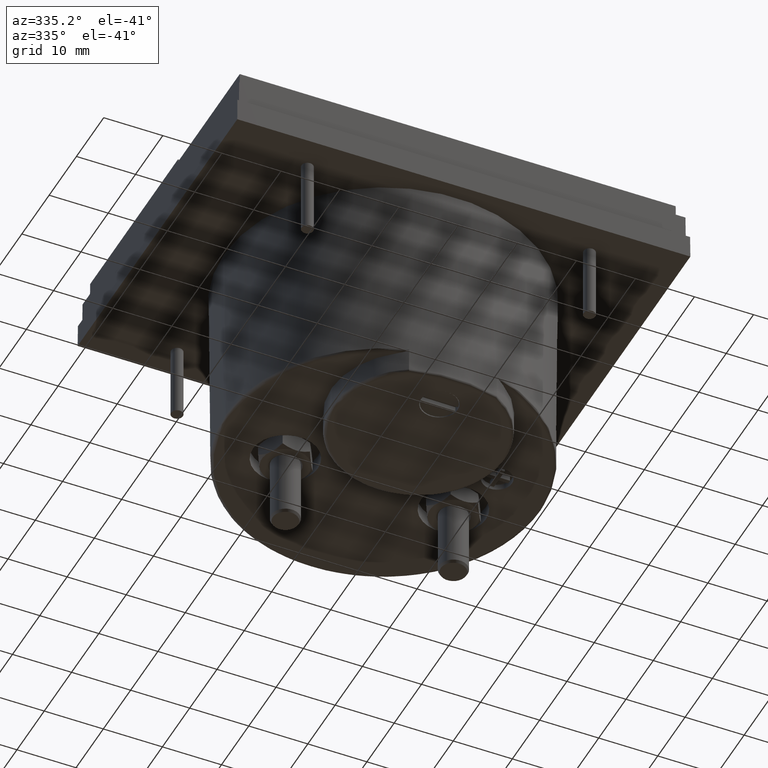
[diagram: clean part render]
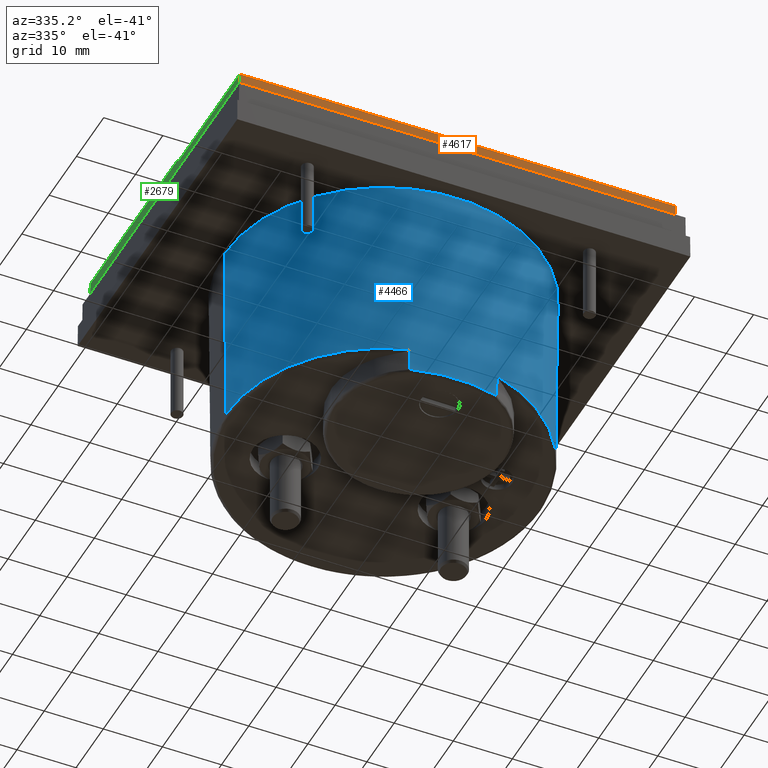
[diagram: same view with three faces highlighted in distinct colors, each labeled with its STEP entity id]
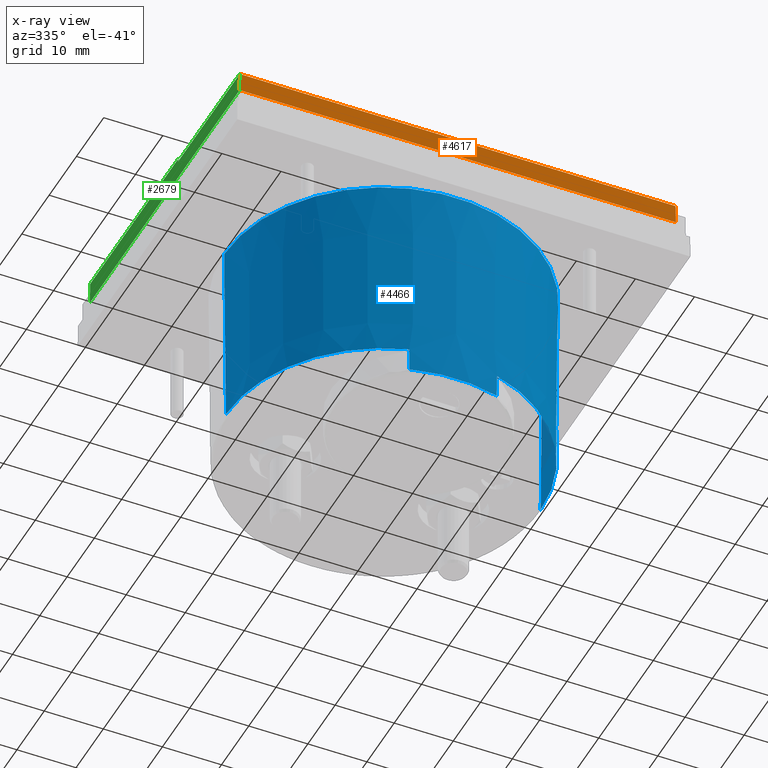
[diagram: x-ray of the same camera — body ghosted, the three highlighted faces saturated]
A machine part, auxiliary view with three faces highlighted in distinct colors.
The next image is the same camera in x-ray (body ghosted, the three faces saturated) — at least one of them is partly hidden behind the body in this view.
Their STEP definitions:

[orange] entity #4617 — the highlighted planar face has unit normal (0, -1, 0.0087).
#189 = EDGE_LOOP ( 'NONE', ( #2197, #3608, #4002, #1951 ) ) ;
#244 = CARTESIAN_POINT ( 'NONE',  ( -1.452741772456940694, -0.2578598826931585708, 0.1795275590551188849 ) ) ;
#268 = DIRECTION ( 'NONE',  ( 0.000000000000000000, -0.008726535498373934677, -0.9999619230641711987 ) ) ;
#837 = EDGE_CURVE ( 'NONE', #1532, #2770, #1219, .T. ) ;
#853 = CARTESIAN_POINT ( 'NONE',  ( -1.453879013889515459, -0.2589971241257338908, 0.04921259842519704747 ) ) ;
#1110 = AXIS2_PLACEMENT_3D ( 'NONE', #1119, #2173, #268 ) ;
#1119 = CARTESIAN_POINT ( 'NONE',  ( 1.509842519685039575, -0.2618110236220452802, -0.2732283464566921394 ) ) ;
#1219 = LINE ( 'NONE', #244, #1470 ) ;
#1303 = VECTOR ( 'NONE', #3743, 39.37007874015747433 ) ;
#1313 = DIRECTION ( 'NONE',  ( -1.000000000000000000, -4.800598825743087264E-17, 4.189419126873180871E-19 ) ) ;
#1470 = VECTOR ( 'NONE', #3063, 39.37007874015748143 ) ;
#1532 = VERTEX_POINT ( 'NONE', #4524 ) ;
#1932 = CARTESIAN_POINT ( 'NONE',  ( 1.453879013889515903, -0.2589971241257337242, 0.04921259842519760952 ) ) ;
#1951 = ORIENTED_EDGE ( 'NONE', *, *, #837, .T. ) ;
#2081 = VERTEX_POINT ( 'NONE', #3515 ) ;
#2165 = VECTOR ( 'NONE', #1313, 39.37007874015748143 ) ;
#2173 = DIRECTION ( 'NONE',  ( 4.800781624796942407E-17, -0.9999619230641713097, 0.008726535498373936411 ) ) ;
#2197 = ORIENTED_EDGE ( 'NONE', *, *, #2960, .T. ) ;
#2357 = CARTESIAN_POINT ( 'NONE',  ( -1.490157480314960647, -0.2589971241257338908, 0.04921259842519685318 ) ) ;
#2657 = LINE ( 'NONE', #1932, #1303 ) ;
#2770 = VERTEX_POINT ( 'NONE', #853 ) ;
#2792 = EDGE_CURVE ( 'NONE', #2081, #1532, #5933, .T. ) ;
#2809 = LINE ( 'NONE', #2357, #5846 ) ;
#2960 = EDGE_CURVE ( 'NONE', #2770, #3881, #2809, .T. ) ;
#3063 = DIRECTION ( 'NONE',  ( -0.008726203243943632740, -0.008726203243944418569, -0.9999238504775703751 ) ) ;
#3205 = CARTESIAN_POINT ( 'NONE',  ( 1.509842519685039575, -0.2578598826931584043, 0.1795275590551188849 ) ) ;
#3272 = EDGE_CURVE ( 'NONE', #3881, #2081, #2657, .T. ) ;
#3515 = CARTESIAN_POINT ( 'NONE',  ( 1.452741772456940694, -0.2578598826931582932, 0.1795275590551188849 ) ) ;
#3608 = ORIENTED_EDGE ( 'NONE', *, *, #3272, .T. ) ;
#3743 = DIRECTION ( 'NONE',  ( -0.008726203243941538928, 0.008726203243944420304, 0.9999238504775705971 ) ) ;
#3881 = VERTEX_POINT ( 'NONE', #4342 ) ;
#4002 = ORIENTED_EDGE ( 'NONE', *, *, #2792, .T. ) ;
#4213 = DIRECTION ( 'NONE',  ( 1.000000000000000000, -0.000000000000000000, 0.000000000000000000 ) ) ;
#4342 = CARTESIAN_POINT ( 'NONE',  ( 1.453879013889515459, -0.2589971241257336132, 0.04921259842519742217 ) ) ;
#4476 = FACE_OUTER_BOUND ( 'NONE', #189, .T. ) ;
#4524 = CARTESIAN_POINT ( 'NONE',  ( -1.452741772456940472, -0.2578598826931583488, 0.1795275590551188849 ) ) ;
#4617 = ADVANCED_FACE ( 'NONE', ( #4476 ), #5384, .T. ) ;
#5384 = PLANE ( 'NONE',  #1110 ) ;
#5846 = VECTOR ( 'NONE', #4213, 39.37007874015748143 ) ;
#5933 = LINE ( 'NONE', #3205, #2165 ) ;

[blue] entity #4466 — the highlighted conical surface has half-angle 0.5 deg.
#160 = CARTESIAN_POINT ( 'NONE',  ( 0.2917813320034607916, -0.1900923783822273117, -1.710408002665992244 ) ) ;
#259 = CARTESIAN_POINT ( 'NONE',  ( 0.2923328206292112874, -0.1913633574854087249, -1.552927687706716853 ) ) ;
#264 = EDGE_CURVE ( 'NONE', #541, #5666, #3009, .T. ) ;
#541 = VERTEX_POINT ( 'NONE', #2760 ) ;
#598 = FACE_OUTER_BOUND ( 'NONE', #1597, .T. ) ;
#636 = VECTOR ( 'NONE', #3431, 39.37007874015748854 ) ;
#760 = CARTESIAN_POINT ( 'NONE',  ( 8.195543980992795572E-16, 0.8159055118110236648, -1.552927687706768367 ) ) ;
#893 = VECTOR ( 'NONE', #2553, 39.37007874015748854 ) ;
#1021 = VERTEX_POINT ( 'NONE', #5505 ) ;
#1327 = CARTESIAN_POINT ( 'NONE',  ( -0.2923328206291994635, -0.1913633574854115560, -1.552927687706716853 ) ) ;
#1467 = EDGE_CURVE ( 'NONE', #1021, #3825, #2012, .T. ) ;
#1597 = EDGE_LOOP ( 'NONE', ( #2030, #4668, #5220, #5631, #2806, #1880, #3419, #4877 ) ) ;
#1629 = CARTESIAN_POINT ( 'NONE',  ( 1.060000000000000719, 0.8159055118110236648, -0.2732283464567021314 ) ) ;
#1793 = CARTESIAN_POINT ( 'NONE',  ( 0.2923328206292112874, -0.1913633574854087249, -1.552927687706716853 ) ) ;
#1875 = EDGE_CURVE ( 'NONE', #3865, #3644, #3217, .T. ) ;
#1880 = ORIENTED_EDGE ( 'NONE', *, *, #1875, .T. ) ;
#1961 = DIRECTION ( 'NONE',  ( -0.000000000000000000, 0.000000000000000000, 1.000000000000000000 ) ) ;
#2012 = LINE ( 'NONE', #3852, #893 ) ;
#2030 = ORIENTED_EDGE ( 'NONE', *, *, #1467, .F. ) ;
#2035 = EDGE_CURVE ( 'NONE', #2179, #3825, #5059, .T. ) ;
#2179 = VERTEX_POINT ( 'NONE', #3332 ) ;
#2438 = DIRECTION ( 'NONE',  ( 1.000000000000000000, 0.000000000000000000, 0.000000000000000000 ) ) ;
#2473 = CARTESIAN_POINT ( 'NONE',  ( 8.195543980992789655E-16, 0.8159055118110236648, -0.2732283464567021314 ) ) ;
#2553 = DIRECTION ( 'NONE',  ( -0.008726535488402603624, 1.068692375351803275E-18, 0.9999619230642582401 ) ) ;
#2638 = CARTESIAN_POINT ( 'NONE',  ( 8.195543980992789655E-16, 0.8159055118110236648, -0.2732283464567021314 ) ) ;
#2690 = VERTEX_POINT ( 'NONE', #5816 ) ;
#2749 = AXIS2_PLACEMENT_3D ( 'NONE', #2473, #1961, #2438 ) ;
#2756 = CARTESIAN_POINT ( 'NONE',  ( 0.2917813320034607916, -0.1900923783822273117, -1.710408002665992244 ) ) ;
#2760 = CARTESIAN_POINT ( 'NONE',  ( -0.2917813345756032906, -0.1900923776361859163, -1.710408002667384686 ) ) ;
#2798 = EDGE_CURVE ( 'NONE', #5666, #3865, #2916, .T. ) ;
#2806 = ORIENTED_EDGE ( 'NONE', *, *, #2798, .T. ) ;
#2907 = DIRECTION ( 'NONE',  ( 0.000000000000000000, 0.000000000000000000, 1.000000000000000000 ) ) ;
#2916 = B_SPLINE_CURVE_WITH_KNOTS ( 'NONE', 3,
 ( #2756, #4608, #4545, #1793 ),
 .UNSPECIFIED., .F., .F.,
 ( 4, 4 ),
 ( 0.000000000000000000, 1.000000000000000000 ),
 .UNSPECIFIED. ) ;
#3009 = CIRCLE ( 'NONE', #4651, 1.047457923163013005 ) ;
#3154 = DIRECTION ( 'NONE',  ( 0.000000000000000000, -0.000000000000000000, -1.000000000000000000 ) ) ;
#3217 = CIRCLE ( 'NONE', #5146, 1.048832233049751261 ) ;
#3322 = DIRECTION ( 'NONE',  ( -1.000000000000000000, 0.000000000000000000, -7.553504680715287121E-15 ) ) ;
#3332 = CARTESIAN_POINT ( 'NONE',  ( 1.060000000000000719, 0.8159055118110236648, -0.2732283464567021314 ) ) ;
#3339 = DIRECTION ( 'NONE',  ( -1.000000000000000000, 0.000000000000000000, 2.868881629112489169E-15 ) ) ;
#3367 = CARTESIAN_POINT ( 'NONE',  ( 8.195543980992795572E-16, 0.8159055118110236648, -1.710408002667415772 ) ) ;
#3370 = CARTESIAN_POINT ( 'NONE',  ( -1.059999999999999165, 0.8159055118110237759, -0.2732283464567021314 ) ) ;
#3419 = ORIENTED_EDGE ( 'NONE', *, *, #5589, .T. ) ;
#3431 = DIRECTION ( 'NONE',  ( 0.008726535488402603624, 0.000000000000000000, 0.9999619230642582401 ) ) ;
#3644 = VERTEX_POINT ( 'NONE', #4107 ) ;
#3646 = EDGE_CURVE ( 'NONE', #2690, #541, #4071, .T. ) ;
#3708 = CONICAL_SURFACE ( 'NONE', #2749, 1.059999999999999831, 0.008726646249999938515 ) ;
#3716 = CIRCLE ( 'NONE', #4200, 1.048832233049751261 ) ;
#3768 = CARTESIAN_POINT ( 'NONE',  ( 8.195543980992795572E-16, 0.8159055118110236648, -1.552927687706768367 ) ) ;
#3825 = VERTEX_POINT ( 'NONE', #3370 ) ;
#3852 = CARTESIAN_POINT ( 'NONE',  ( -1.059999999999999165, 0.8159055118110237759, -0.2732283464567021314 ) ) ;
#3865 = VERTEX_POINT ( 'NONE', #259 ) ;
#3886 = LINE ( 'NONE', #1629, #636 ) ;
#3968 = DIRECTION ( 'NONE',  ( -1.000000000000000000, 0.000000000000000000, -7.553504680715287121E-15 ) ) ;
#4071 = B_SPLINE_CURVE_WITH_KNOTS ( 'NONE', 3,
 ( #1327, #4984, #5953, #4504 ),
 .UNSPECIFIED., .F., .F.,
 ( 4, 4 ),
 ( 0.000000000000000000, 1.000000000000000000 ),
 .UNSPECIFIED. ) ;
#4107 = CARTESIAN_POINT ( 'NONE',  ( 1.048832233049751927, 0.8159055118110236648, -1.552927687706768367 ) ) ;
#4194 = AXIS2_PLACEMENT_3D ( 'NONE', #2638, #3154, #4494 ) ;
#4200 = AXIS2_PLACEMENT_3D ( 'NONE', #3768, #5618, #3322 ) ;
#4466 = ADVANCED_FACE ( 'NONE', ( #598 ), #3708, .T. ) ;
#4494 = DIRECTION ( 'NONE',  ( 1.000000000000000000, 0.000000000000000000, 0.000000000000000000 ) ) ;
#4504 = CARTESIAN_POINT ( 'NONE',  ( -0.2917813345756032906, -0.1900923776361859163, -1.710408002667384686 ) ) ;
#4509 = EDGE_CURVE ( 'NONE', #1021, #2690, #3716, .T. ) ;
#4545 = CARTESIAN_POINT ( 'NONE',  ( 0.2921489196474710281, -0.1909397236215279181, -1.605421126027062328 ) ) ;
#4608 = CARTESIAN_POINT ( 'NONE',  ( 0.2919650909610897460, -0.1905160636664051943, -1.657914564347348074 ) ) ;
#4651 = AXIS2_PLACEMENT_3D ( 'NONE', #3367, #2907, #3339 ) ;
#4668 = ORIENTED_EDGE ( 'NONE', *, *, #4509, .T. ) ;
#4877 = ORIENTED_EDGE ( 'NONE', *, *, #2035, .T. ) ;
#4964 = DIRECTION ( 'NONE',  ( 0.000000000000000000, 0.000000000000000000, 1.000000000000000000 ) ) ;
#4984 = CARTESIAN_POINT ( 'NONE',  ( -0.2921489196474683081, -0.1909397236215286953, -1.605421126026988610 ) ) ;
#5059 = CIRCLE ( 'NONE', #4194, 1.059999999999999831 ) ;
#5146 = AXIS2_PLACEMENT_3D ( 'NONE', #760, #4964, #3968 ) ;
#5220 = ORIENTED_EDGE ( 'NONE', *, *, #3646, .T. ) ;
#5505 = CARTESIAN_POINT ( 'NONE',  ( -1.048832233049750373, 0.8159055118110237759, -1.552927687706768367 ) ) ;
#5589 = EDGE_CURVE ( 'NONE', #3644, #2179, #3886, .T. ) ;
#5618 = DIRECTION ( 'NONE',  ( 0.000000000000000000, 0.000000000000000000, 1.000000000000000000 ) ) ;
#5631 = ORIENTED_EDGE ( 'NONE', *, *, #264, .T. ) ;
#5666 = VERTEX_POINT ( 'NONE', #160 ) ;
#5816 = CARTESIAN_POINT ( 'NONE',  ( -0.2923328206291994635, -0.1913633574854115560, -1.552927687706716853 ) ) ;
#5953 = CARTESIAN_POINT ( 'NONE',  ( -0.2919650909610871370, -0.1905160636664066931, -1.657914564347200415 ) ) ;

[green] entity #2679 — the highlighted planar face has unit normal (-1, 0, 0.0087).
#94 = EDGE_CURVE ( 'NONE', #2671, #3731, #2470, .T. ) ;
#132 = LINE ( 'NONE', #1161, #1570 ) ;
#146 = LINE ( 'NONE', #3861, #236 ) ;
#171 = DIRECTION ( 'NONE',  ( 0.000000000000000000, 1.000000000000000000, -0.000000000000000000 ) ) ;
#215 = CARTESIAN_POINT ( 'NONE',  ( -1.456692913385826849, 0.6299212598425196763, -0.2732283464566929720 ) ) ;
#236 = VECTOR ( 'NONE', #1996, 39.37007874015748143 ) ;
#244 = CARTESIAN_POINT ( 'NONE',  ( -1.452741772456940694, -0.2578598826931585708, 0.1795275590551188849 ) ) ;
#304 = ORIENTED_EDGE ( 'NONE', *, *, #1433, .T. ) ;
#390 = ORIENTED_EDGE ( 'NONE', *, *, #4532, .T. ) ;
#424 = DIRECTION ( 'NONE',  ( -0.008726203243983899141, -0.008726203243942269247, -0.9999238504775702641 ) ) ;
#671 = PLANE ( 'NONE',  #1972 ) ;
#837 = EDGE_CURVE ( 'NONE', #1532, #2770, #1219, .T. ) ;
#853 = CARTESIAN_POINT ( 'NONE',  ( -1.453879013889515459, -0.2589971241257338908, 0.04921259842519704747 ) ) ;
#964 = EDGE_LOOP ( 'NONE', ( #304, #1212, #4856, #3326, #390, #1142 ) ) ;
#1142 = ORIENTED_EDGE ( 'NONE', *, *, #837, .F. ) ;
#1161 = CARTESIAN_POINT ( 'NONE',  ( -1.452741772456939806, 0.6299212598425196763, 0.1795275590551188849 ) ) ;
#1212 = ORIENTED_EDGE ( 'NONE', *, *, #2737, .F. ) ;
#1219 = LINE ( 'NONE', #244, #1470 ) ;
#1433 = EDGE_CURVE ( 'NONE', #1532, #2546, #132, .T. ) ;
#1470 = VECTOR ( 'NONE', #3063, 39.37007874015748143 ) ;
#1532 = VERTEX_POINT ( 'NONE', #4524 ) ;
#1570 = VECTOR ( 'NONE', #4763, 39.37007874015748143 ) ;
#1590 = VECTOR ( 'NONE', #424, 39.37007874015748143 ) ;
#1870 = VECTOR ( 'NONE', #3074, 39.37007874015748854 ) ;
#1972 = AXIS2_PLACEMENT_3D ( 'NONE', #215, #3478, #5758 ) ;
#1996 = DIRECTION ( 'NONE',  ( -0.000000000000000000, -1.000000000000000000, -0.000000000000000000 ) ) ;
#2097 = FACE_OUTER_BOUND ( 'NONE', #964, .T. ) ;
#2470 = LINE ( 'NONE', #4323, #4253 ) ;
#2546 = VERTEX_POINT ( 'NONE', #4274 ) ;
#2671 = VERTEX_POINT ( 'NONE', #4817 ) ;
#2679 = ADVANCED_FACE ( 'NONE', ( #2097 ), #671, .T. ) ;
#2737 = EDGE_CURVE ( 'NONE', #2671, #2546, #3598, .T. ) ;
#2770 = VERTEX_POINT ( 'NONE', #853 ) ;
#3063 = DIRECTION ( 'NONE',  ( -0.008726203243943632740, -0.008726203243944418569, -0.9999238504775703751 ) ) ;
#3074 = DIRECTION ( 'NONE',  ( -0.008726203243943410695, 0.008726203243945232155, -0.9999238504775703751 ) ) ;
#3326 = ORIENTED_EDGE ( 'NONE', *, *, #3943, .T. ) ;
#3478 = DIRECTION ( 'NONE',  ( -0.9999619230641713097, 0.000000000000000000, 0.008726535498373936411 ) ) ;
#3598 = LINE ( 'NONE', #4519, #1590 ) ;
#3731 = VERTEX_POINT ( 'NONE', #5126 ) ;
#3861 = CARTESIAN_POINT ( 'NONE',  ( -1.453879013889515903, 0.6102362204724409711, 0.04921259842519685318 ) ) ;
#3943 = EDGE_CURVE ( 'NONE', #3731, #5611, #4180, .T. ) ;
#3954 = CARTESIAN_POINT ( 'NONE',  ( -1.453879013889515459, 1.900729407590302955, 0.04921259842519686012 ) ) ;
#4180 = LINE ( 'NONE', #5969, #1870 ) ;
#4253 = VECTOR ( 'NONE', #171, 39.37007874015748143 ) ;
#4274 = CARTESIAN_POINT ( 'NONE',  ( -1.452741772456940472, 0.6338724007714079400, 0.1795275590551188849 ) ) ;
#4323 = CARTESIAN_POINT ( 'NONE',  ( -1.452569983720901403, 0.6299212598425196763, 0.1992125984251968407 ) ) ;
#4519 = CARTESIAN_POINT ( 'NONE',  ( -1.452569983720901403, 0.6340441895074451217, 0.1992125984251968407 ) ) ;
#4524 = CARTESIAN_POINT ( 'NONE',  ( -1.452741772456940472, -0.2578598826931583488, 0.1795275590551188849 ) ) ;
#4532 = EDGE_CURVE ( 'NONE', #5611, #2770, #146, .T. ) ;
#4763 = DIRECTION ( 'NONE',  ( 0.000000000000000000, 1.000000000000000000, -0.000000000000000000 ) ) ;
#4817 = CARTESIAN_POINT ( 'NONE',  ( -1.452569983720901625, 0.6340441895074450107, 0.1992125984251968407 ) ) ;
#4856 = ORIENTED_EDGE ( 'NONE', *, *, #94, .T. ) ;
#5126 = CARTESIAN_POINT ( 'NONE',  ( -1.452569983720901625, 1.899420377421689343, 0.1992125984251967852 ) ) ;
#5611 = VERTEX_POINT ( 'NONE', #3954 ) ;
#5758 = DIRECTION ( 'NONE',  ( 0.008726535498373934677, 0.000000000000000000, 0.9999619230641711987 ) ) ;
#5969 = CARTESIAN_POINT ( 'NONE',  ( -1.452569983720901403, 1.899420377421689343, 0.1992125984251968407 ) ) ;